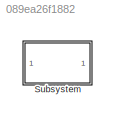
MODEL slx_089ea26f1882
KIND library
CONFIG AbsTol = auto
CONFIG EnableMultiTasking = off
CONFIG FixedStep = auto
CONFIG MaxStep = auto
CONFIG MinStep = auto
CONFIG RelTol = 1e-3
CONFIG SampleTimeConstraint = Unconstrained
CONFIG SolverName = VariableStepAuto
CONFIG StartTime = 0.0
CONFIG StopTime = 10.0
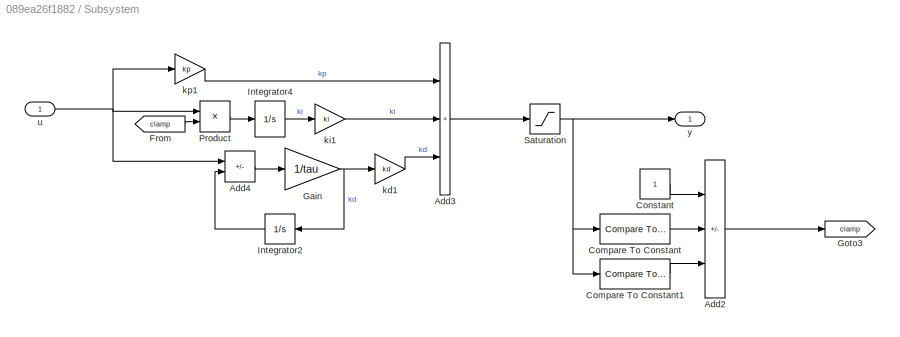
BLOCK [SubSystem] Subsystem
  Ports = [1, 1]
  RequestExecContextInheritance = off
BLOCK [Sum] Subsystem/Add2
  IconShape = rectangular
  Inputs = +--
  Ports = [3, 1]
BLOCK [Sum] Subsystem/Add3
  IconShape = rectangular
  Inputs = +++
  Ports = [3, 1]
BLOCK [Sum] Subsystem/Add4
  IconShape = rectangular
  Inputs = +-
  Ports = [2, 1]
BLOCK [Reference] Subsystem/Compare To Constant  REF=simulink/Logic and Bit
Operations/Compare
To Constant
  Ports = [1, 1]
  SourceBlock = simulink/Logic and Bit\nOperations/Compare\nTo Constant
  SourceProductBaseCode = SL
  SourceType = Compare To Constant
BLOCK [Reference] Subsystem/Compare To Constant1  REF=simulink/Logic and Bit
Operations/Compare
To Constant
  Ports = [1, 1]
  SourceBlock = simulink/Logic and Bit\nOperations/Compare\nTo Constant
  SourceProductBaseCode = SL
  SourceType = Compare To Constant
BLOCK [Constant] Subsystem/Constant
BLOCK [From] Subsystem/From
  GotoTag = clamp
BLOCK [Gain] Subsystem/Gain
  Gain = 1/tau
BLOCK [Goto] Subsystem/Goto3
  GotoTag = clamp
BLOCK [Integrator] Subsystem/Integrator2
  ContinuousStateAttributes = 'ctrlDerivative'
  Ports = [1, 1]
BLOCK [Integrator] Subsystem/Integrator4
  ContinuousStateAttributes = 'ctrlIntegral'
  Ports = [1, 1]
BLOCK [Product] Subsystem/Product
  Ports = [2, 1]
BLOCK [Saturate] Subsystem/Saturation
  LowerLimit = lowerLim
  UpperLimit = upperLim
BLOCK [Gain] Subsystem/kd1
  Gain = kd
BLOCK [Gain] Subsystem/ki1
  Gain = ki
BLOCK [Gain] Subsystem/kp1
  Gain = kp
BLOCK [Inport] Subsystem/u
  PortDimensions = 1
BLOCK [Outport] Subsystem/y
  PortDimensions = 1
  VectorParamsAs1DForOutWhenUnconnected = off
LINE Subsystem/Add2:1 -> Subsystem/Goto3:1
LINE Subsystem/Add3:1 -> Subsystem/Saturation:1
LINE Subsystem/Add4:1 -> Subsystem/Gain:1
LINE Subsystem/Compare To Constant1:1 -> Subsystem/Add2:3
LINE Subsystem/Compare To Constant:1 -> Subsystem/Add2:2
LINE Subsystem/Constant:1 -> Subsystem/Add2:1
LINE Subsystem/From:1 -> Subsystem/Product:2
NET Subsystem/Gain:1 -> Subsystem/Integrator2:1, Subsystem/kd1:1
LINE Subsystem/Integrator2:1 -> Subsystem/Add4:2
LINE Subsystem/Integrator4:1 -> Subsystem/ki1:1
LINE Subsystem/Product:1 -> Subsystem/Integrator4:1
NET Subsystem/Saturation:1 -> Subsystem/Compare To Constant1:1, Subsystem/Compare To Constant:1, Subsystem/y:1
LINE Subsystem/kd1:1 -> Subsystem/Add3:3
LINE Subsystem/ki1:1 -> Subsystem/Add3:2
LINE Subsystem/kp1:1 -> Subsystem/Add3:1
NET Subsystem/u:1 -> Subsystem/Add4:1, Subsystem/Product:1, Subsystem/kp1:1
note: NET lines group one-source signal fan-out (src -> all destinations, sorted); 1:1 wires keep LINE
